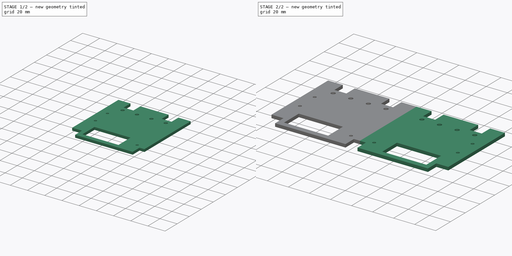
[diagram: build sequence overview — one tinted view per stage of 2, left to right]
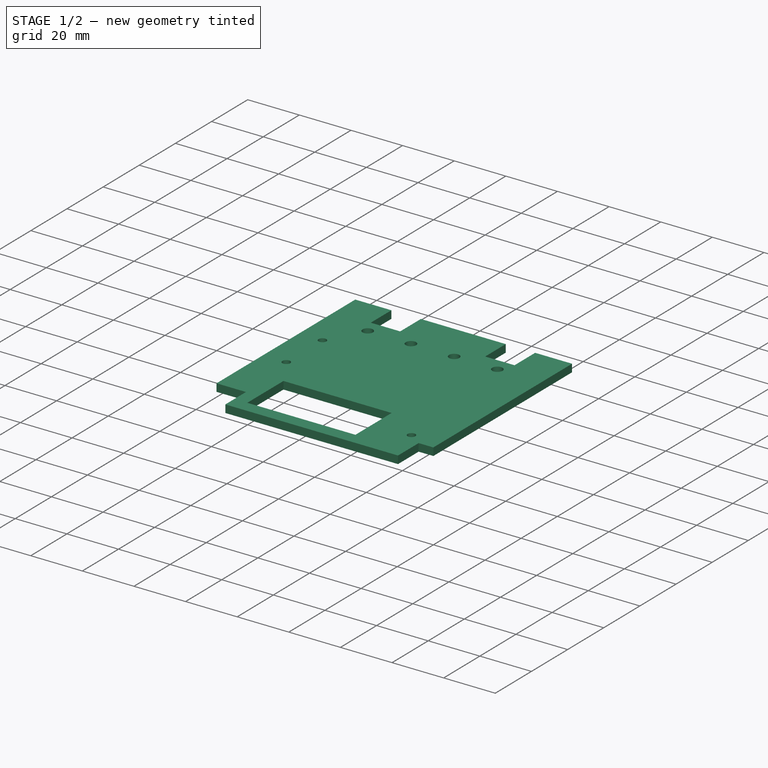
[diagram: stage 1 of 2 — iso view after this stage's code; geometry added in this stage tinted green]
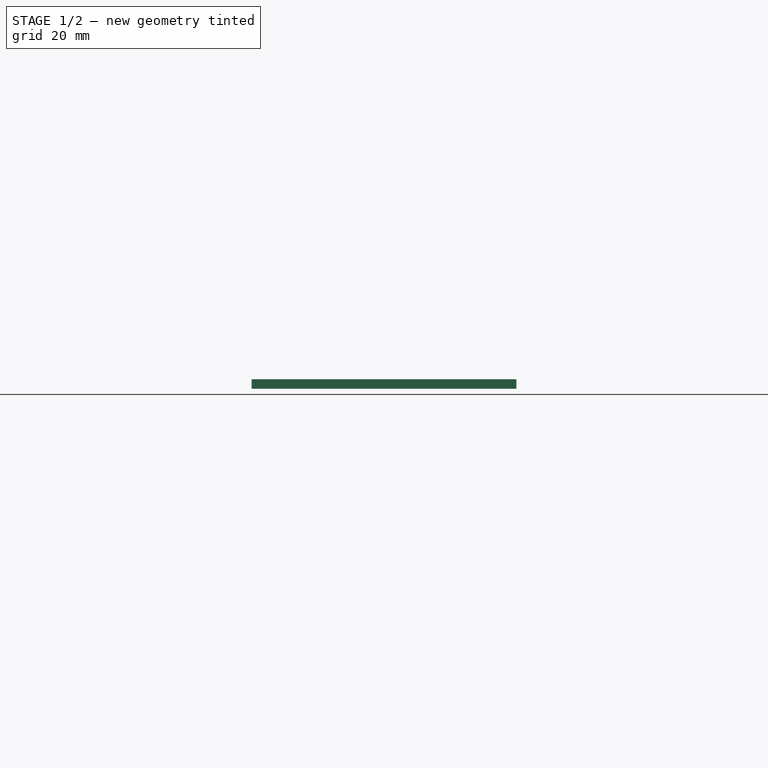
[diagram: stage 1 of 2 — front view after this stage's code; geometry added in this stage tinted green]
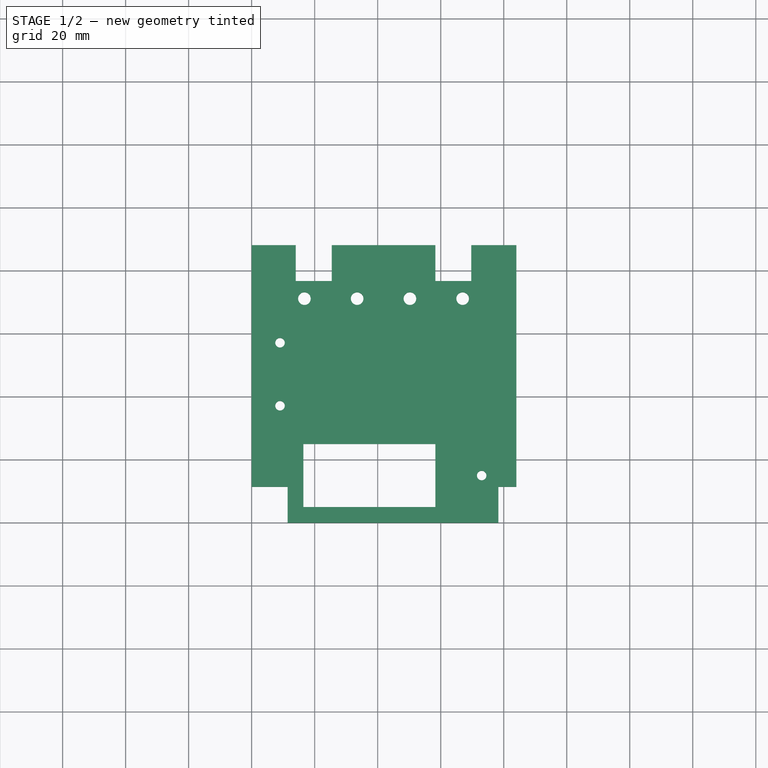
[diagram: stage 1 of 2 — top view after this stage's code; geometry added in this stage tinted green]
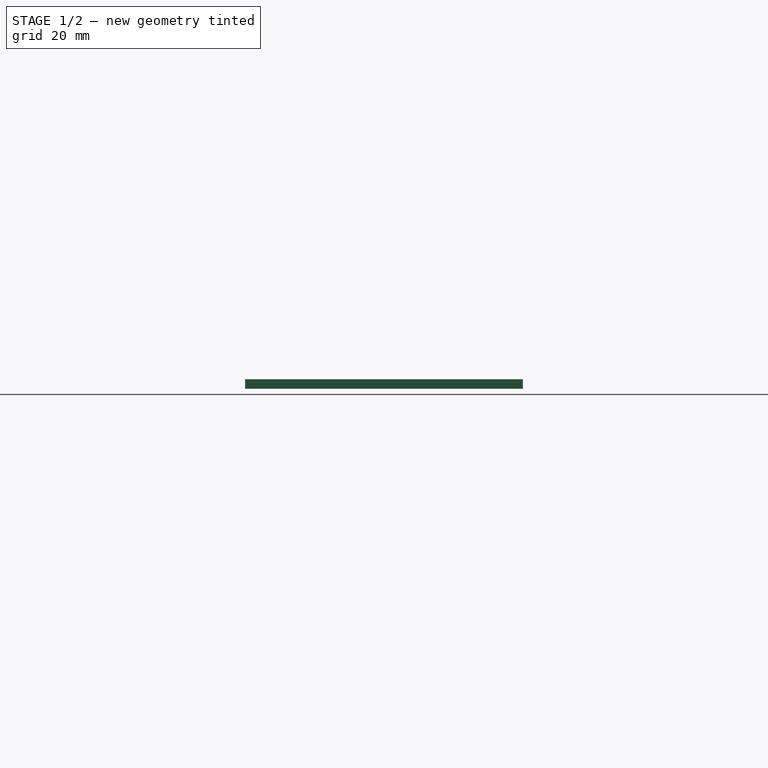
[diagram: stage 1 of 2 — right view after this stage's code; geometry added in this stage tinted green]
FCSTD DOCUMENT  (FreeCAD 0.16R6707 (Git))
Label: étage_batterie
License: All rights reserved
LicenseURL: http://en.wikipedia.org/wiki/All_rights_reserved
objects: Sketcher::SketchObject×1, PartDesign::Pad×1, PartDesign::Mirrored×1
note: 4 computed .brp shape members not serialized (recipe doc carries the construction recipe); baked Part::Feature solids carry a one-line shape summary decoded from their .brp

FEATURE [Sketcher::SketchObject] Sketch
  sketch-geometry (28):
    g0: LineSegment StartX=0 StartY=88.15 StartZ=0 EndX=14 EndY=88.15 EndZ=0
    g1: LineSegment StartX=14 StartY=88.15 StartZ=0 EndX=14 EndY=76.75 EndZ=0
    g2: LineSegment StartX=14 StartY=76.75 StartZ=0 EndX=25.4 EndY=76.75 EndZ=0
    g3: LineSegment StartX=25.4 StartY=76.75 StartZ=0 EndX=25.4 EndY=88.15 EndZ=0
    g4: LineSegment StartX=25.4 StartY=88.15 StartZ=0 EndX=58.3 EndY=88.15 EndZ=0
    g5: LineSegment StartX=58.3 StartY=88.15 StartZ=0 EndX=58.3 EndY=76.75 EndZ=0
    g6: LineSegment StartX=58.3 StartY=76.75 StartZ=0 EndX=69.7 EndY=76.75 EndZ=0
    g7: LineSegment StartX=69.7 StartY=76.75 StartZ=0 EndX=69.7 EndY=88.15 EndZ=0
    g8: LineSegment StartX=69.7 StartY=88.15 StartZ=0 EndX=84 EndY=88.15 EndZ=0
    g9: LineSegment StartX=78.3 StartY=0 StartZ=0 EndX=78.3 EndY=11.4 EndZ=0
    g10: LineSegment StartX=78.3 StartY=11.4 StartZ=0 EndX=84 EndY=11.4 EndZ=0
    g11: LineSegment StartX=84 StartY=88.15 StartZ=0 EndX=84 EndY=11.4 EndZ=0
    g12: Circle CenterX=16.74 CenterY=71.15 CenterZ=0 NormalX=0 NormalY=0 NormalZ=1 Radius=2
    g13: Circle CenterX=33.48 CenterY=71.15 CenterZ=0 NormalX=0 NormalY=0 NormalZ=1 Radius=2
    g14: Circle CenterX=50.22 CenterY=71.15 CenterZ=0 NormalX=0 NormalY=0 NormalZ=1 Radius=2
    g15: Circle CenterX=66.96 CenterY=71.15 CenterZ=0 NormalX=0 NormalY=0 NormalZ=1 Radius=2
    g16: Circle CenterX=73 CenterY=15 CenterZ=0 NormalX=0 NormalY=0 NormalZ=1 Radius=1.5
    g17: LineSegment StartX=0 StartY=88.15 StartZ=0 EndX=0 EndY=11.4 EndZ=0
    g18: LineSegment StartX=0 StartY=11.4 StartZ=0 EndX=11.4 EndY=11.4 EndZ=0
    g19: LineSegment StartX=11.4 StartY=11.4 StartZ=0 EndX=11.4 EndY=0 EndZ=0
    g20: LineSegment StartX=11.4 StartY=0 StartZ=0 EndX=78.3 EndY=0 EndZ=0
    g21: Circle CenterX=9 CenterY=57.15 CenterZ=0 NormalX=0 NormalY=0 NormalZ=1 Radius=1.5
    g22: GeomPoint [constr] X=9 Y=63.15 Z=0
    g23: Circle CenterX=9 CenterY=37.15 CenterZ=0 NormalX=0 NormalY=0 NormalZ=1 Radius=1.5
    g24: LineSegment StartX=16.4 StartY=25 StartZ=0 EndX=58.3 EndY=25 EndZ=0
    g25: LineSegment StartX=58.3 StartY=25 StartZ=0 EndX=58.3 EndY=5 EndZ=0
    g26: LineSegment StartX=58.3 StartY=5 StartZ=0 EndX=16.4 EndY=5 EndZ=0
    g27: LineSegment StartX=16.4 StartY=5 StartZ=0 EndX=16.4 EndY=25 EndZ=0
  constraints (83):
    c: Horizontal(g0)
    c: Coincident(g0,g1)
    c: Vertical(g1)
    c: Coincident(g1,g2)
    c: Horizontal(g2)
    c: Coincident(g2,g3)
    c: Vertical(g3)
    c: Coincident(g3,g4)
    c: Horizontal(g4)
    c: Coincident(g4,g5)
    c: Vertical(g5)
    c: Coincident(g5,g6)
    c: Horizontal(g6)
    c: Coincident(g6,g7)
    c: Vertical(g7)
    c: Coincident(g7,g8)
    c: Horizontal(g8)
    c: Distance(g0) = 14
    c: Distance(g4) = 32.9
    c: Distance(g2) = 11.4
    c: Distance(g1) = 11.4
    c: Distance(g3) = 11.4
    c: Distance(g5) = 11.4
    c: Distance(g6) = 11.4
    c: Distance(g7) = 11.4
    c: Vertical(g9)
    c: Coincident(g9,g10)
    c: Horizontal(g10)
    c: Coincident(g11,g8)
    c: Coincident(g11,g10)
    c: Vertical(g11)
    c: Distance(g9) = 11.4
    c: Distance(g10) = 5.7
    c: DistanceX(g10) = 84
    c: DistanceY(g12,g13) = 0
    c: DistanceY(g14,g13) = 0
    c: DistanceY(g14,g15) = 0
    c: DistanceY(g12,g0) = 17
    c: DistanceX(g12) = 16.74
    c: DistanceX(g12,g13) = 16.74
    c: DistanceX(g13,g14) = 16.74
    c: DistanceX(g14,g15) = 16.74
    c: DistanceY(g16) = 15
    c: DistanceX(g16,g9) = 5.3
    c: Radius(g12) = 2
    c: Equal(g12,g13)
    c: Equal(g12,g14)
    c: Equal(g12,g15)
    c: Radius(g16) = 1.5
    c: DistanceY(g0) = 88.15
    c: Coincident(g0,g17)
    c: Vertical(g17)
    c: Coincident(g17,g18)
    c: Horizontal(g18)
    c: Coincident(g18,g19)
    c: Vertical(g19)
    c: Coincident(g19,g20)
    c: Coincident(g20,g9)
    c: Horizontal(g20)
    c: DistanceY(g19) = 0
    c: Distance(g19) = 11.4
    c: Distance(g18) = 11.4
    c: DistanceY(g22,g0) = 25
    c: Radius(g21) = 1.5
    c: Equal(g21,g23)
    c: DistanceX(g21,g23) = 0
    c: DistanceY(g23,g21) = 20
    c: DistanceX(g22,g21) = 0
    c: DistanceX(g21) = 9
    c: DistanceX(g17) = 0
    c: DistanceY(g21,g22) = 6
    c: Coincident(g24,g25)
    c: Coincident(g25,g26)
    c: Coincident(g26,g27)
    c: Coincident(g27,g24)
    c: Horizontal(g24)
    c: Horizontal(g26)
    c: Vertical(g25)
    c: Vertical(g27)
    c: DistanceY(g19,g26) = 5
    c: DistanceX(g19,g26) = 5
    c: DistanceX(g25,g9) = 20
    c: Distance(g25) = 20
FEATURE [PartDesign::Pad] Pad
  Length = 3
  Length2 = 100
  Sketch = -> Sketch
  Type = 0
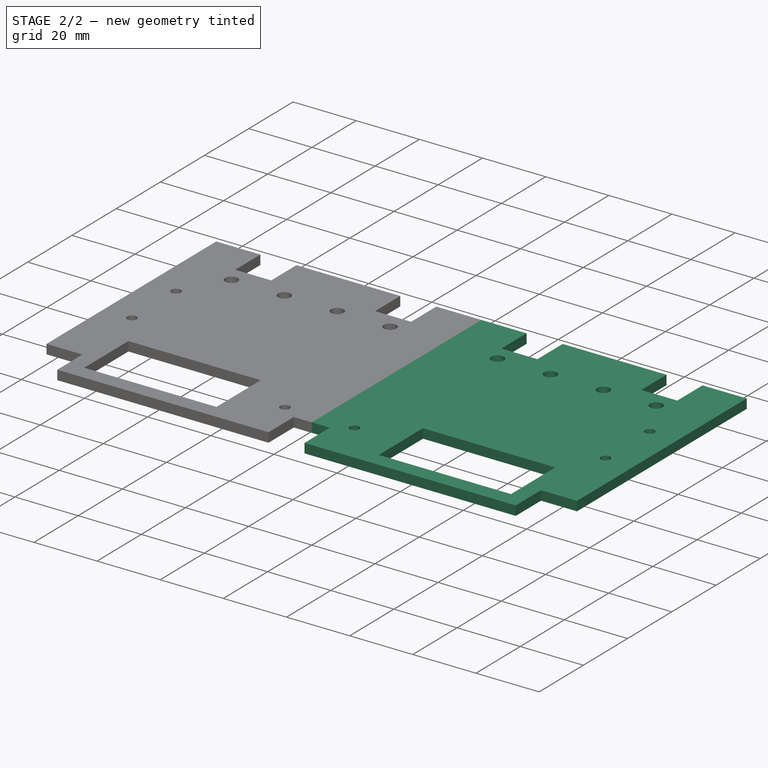
[diagram: stage 2 of 2 — iso view after this stage's code; geometry added in this stage tinted green]
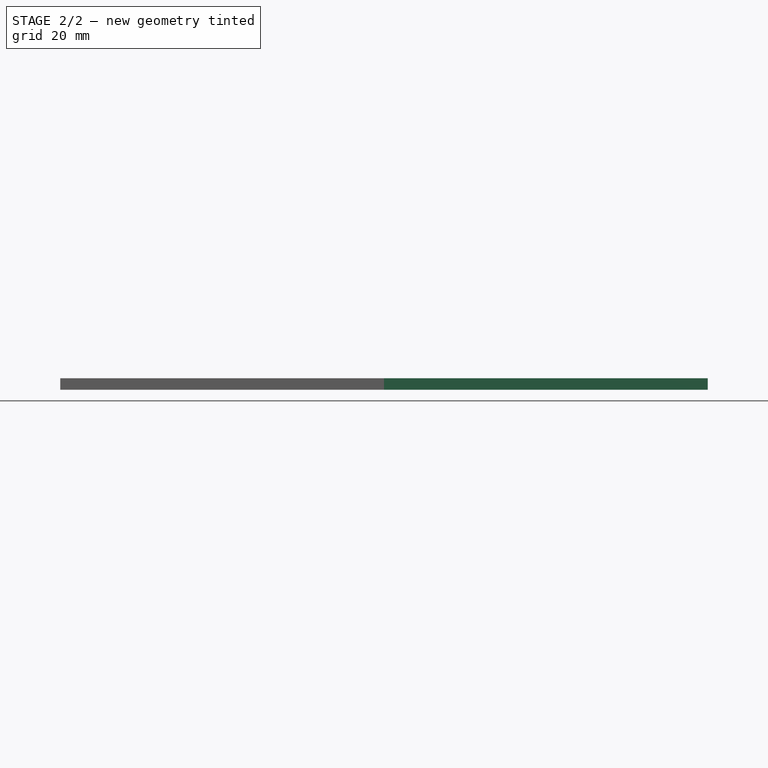
[diagram: stage 2 of 2 — front view after this stage's code; geometry added in this stage tinted green]
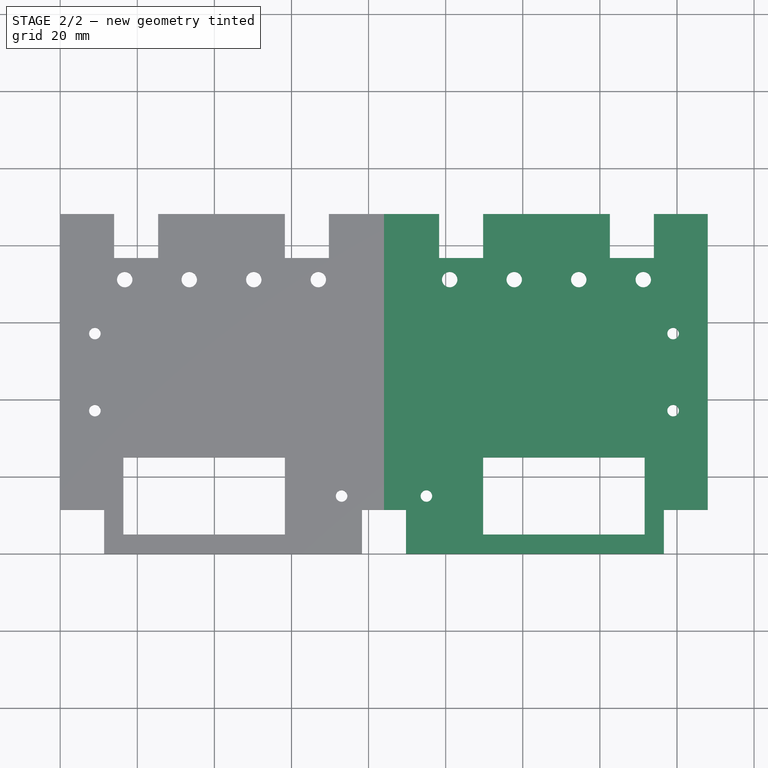
[diagram: stage 2 of 2 — top view after this stage's code; geometry added in this stage tinted green]
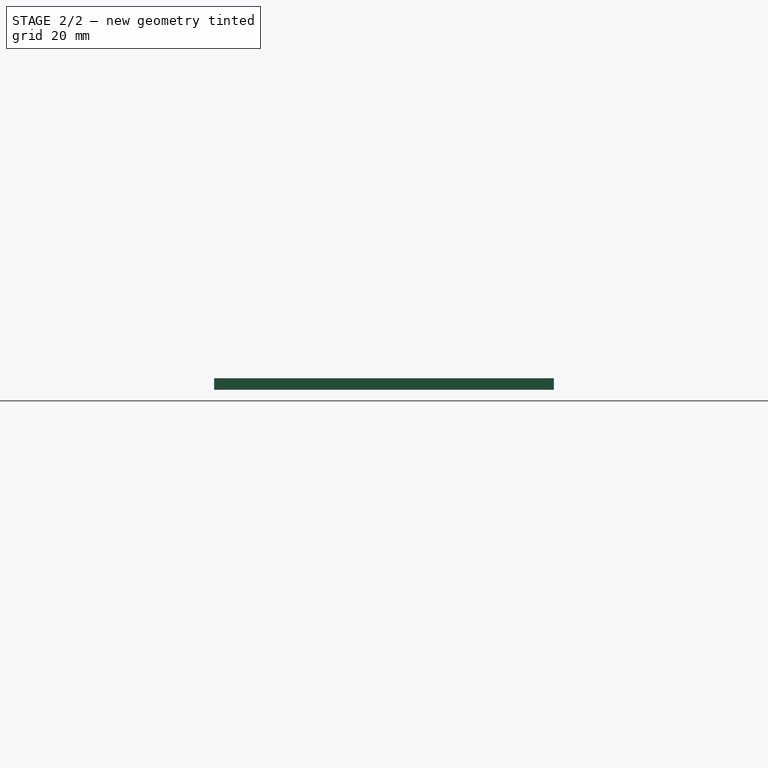
[diagram: stage 2 of 2 — right view after this stage's code; geometry added in this stage tinted green]
FEATURE [PartDesign::Mirrored] Mirrored
  MirrorPlane = -> Pad [Face10]
  Originals = -> [Pad]
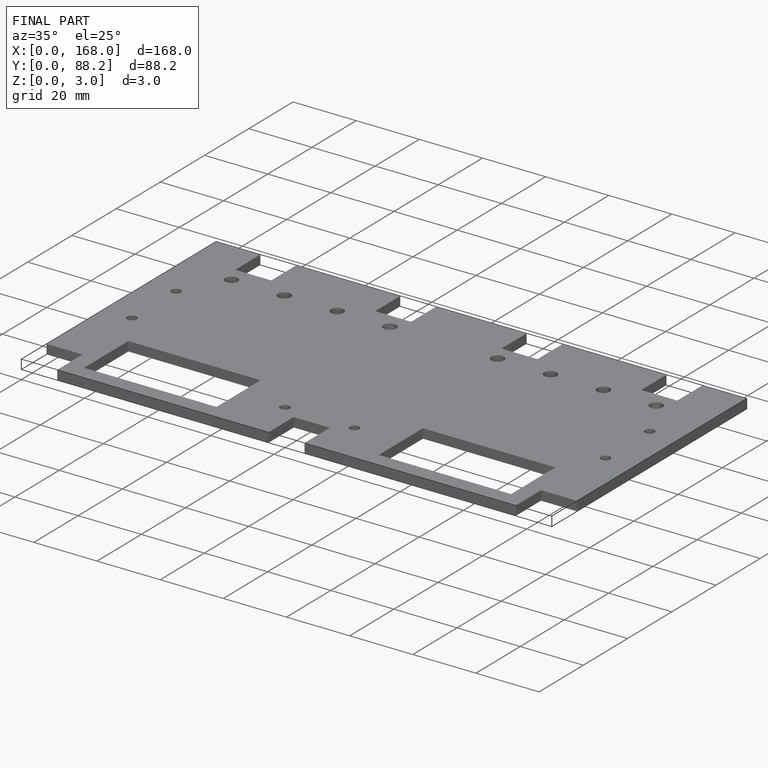
[diagram: finished part — iso view with bounding-box wireframe]
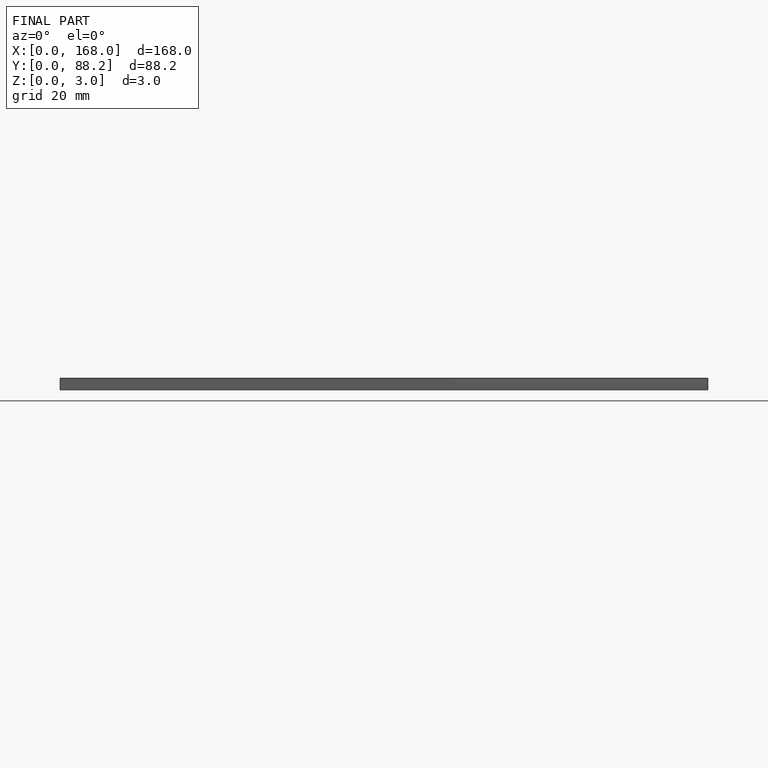
[diagram: finished part — front view with bounding-box wireframe]
